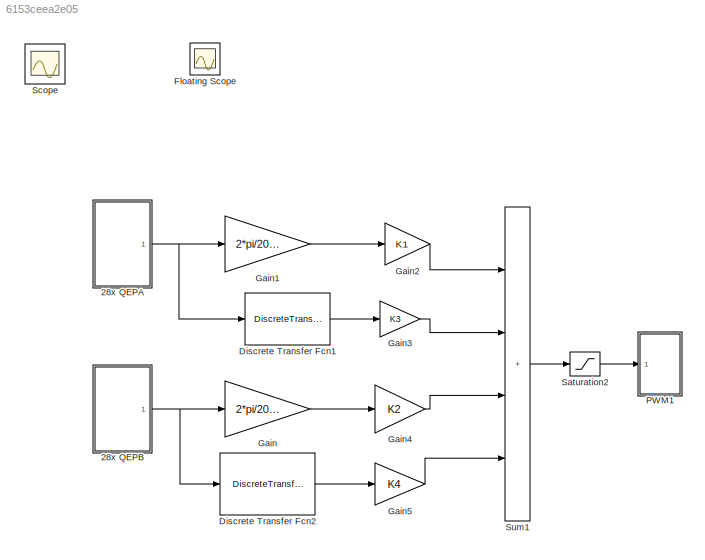
MODEL slx_6153ceea2e05
KIND model
CONFIG AbsTol = auto
CONFIG EnableMultiTasking = on
CONFIG FixedStep = 0.001
CONFIG MaxStep = auto
CONFIG MinStep = auto
CONFIG PreLoadFcn = RIP_LQR
CONFIG RelTol = 1e-3
CONFIG SampleTimeConstraint = Unconstrained
CONFIG Solver = FixedStepDiscrete
CONFIG SolverName = FixedStepDiscrete
CONFIG StartTime = 0
CONFIG StopTime = inf
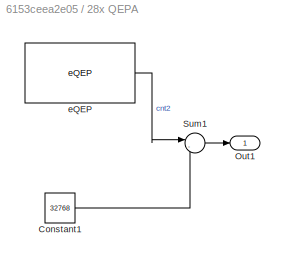
BLOCK [SubSystem] 28x QEPA
  Ports = [0, 1]
  RequestExecContextInheritance = off
BLOCK [Constant] 28x QEPA/Constant1
  Value = 32768
BLOCK [Outport] 28x QEPA/Out1
BLOCK [Sum] 28x QEPA/Sum1
  Inputs = |-+
  Ports = [2, 1]
BLOCK [Reference] 28x QEPA/eQEP  REF=c280xlib/eQEP
  Ports = [0, 1]
  SourceBlock = c280xlib/eQEP
  SourceProductBaseCode = TIC2000
  SourceType = C28x eQEP
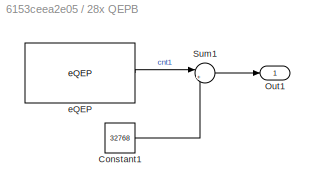
BLOCK [SubSystem] 28x QEPB
  Ports = [0, 1]
  RequestExecContextInheritance = off
BLOCK [Constant] 28x QEPB/Constant1
  Value = 32768
BLOCK [Outport] 28x QEPB/Out1
BLOCK [Sum] 28x QEPB/Sum1
  Inputs = |+-
  NameLocation = top
  Ports = [2, 1]
BLOCK [Reference] 28x QEPB/eQEP  REF=c280xlib/eQEP
  Ports = [0, 1]
  SourceBlock = c280xlib/eQEP
  SourceProductBaseCode = TIC2000
  SourceType = C28x eQEP
BLOCK [DiscreteTransferFcn] Discrete Transfer Fcn1
  Denominator = [1 -0.7788]
  InputPortMap = u0
  Numerator = [3.14 -3.14]
  Ports = [1, 1]
  SampleTime = 0.001
BLOCK [DiscreteTransferFcn] Discrete Transfer Fcn2
  Denominator = [1 -0.7788]
  InputPortMap = u0
  Numerator = [3.14 -3.14]
  Ports = [1, 1]
  SampleTime = 0.001
BLOCK [Scope] Floating Scope
  Floating = off
  IOType = viewer
  NumInputPorts = 1
  Ports = []
  ScopeSpecificationString = C++SS(StrPVP('Location','[376, 294, 700, 533]'),StrPVP('Open','off'),MxPVP('AxesTitles',54,'struct(''axes1'',''%<SignalLabel>'')'),StrPVP('ShowLegends','off'),StrPVP('DataFormat','StructureWithTime'),StrPVP('LimitDataPoints','on'),StrPVP('Decimation','1'),StrPVP('BlockParamSampleInput','off'))
BLOCK [Gain] Gain
  Gain = 2*pi/2000
BLOCK [Gain] Gain1
  Gain = 2*pi/2000
BLOCK [Gain] Gain2
  Gain = K1
BLOCK [Gain] Gain3
  Gain = K3
BLOCK [Gain] Gain4
  Gain = K2
BLOCK [Gain] Gain5
  Gain = K4
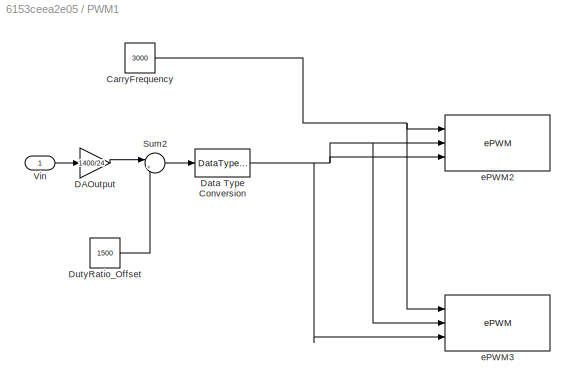
BLOCK [SubSystem] PWM1
  Ports = [1]
  RequestExecContextInheritance = off
BLOCK [Constant] PWM1/CarryFrequency
  OutDataTypeStr = uint16
  Value = 3000
BLOCK [Gain] PWM1/DAOutput
  Gain = 1400/24
  OutDataTypeStr = Inherit: Same as input
  ParamDataTypeStr = Inherit: Same as input
  SaturateOnIntegerOverflow = on
BLOCK [DataTypeConversion] PWM1/Data Type Conversion
BLOCK [Constant] PWM1/DutyRatio_Offset
  Value = 1500
BLOCK [Sum] PWM1/Sum2
  Inputs = |++
  Ports = [2, 1]
  SaturateOnIntegerOverflow = on
BLOCK [Inport] PWM1/Vin
BLOCK [Reference] PWM1/ePWM2  REF=c280xlib/ePWM
  Ports = [3]
  SourceBlock = c280xlib/ePWM
  SourceProductBaseCode = TIC2000
  SourceType = C280x/C2833x ePWM
BLOCK [Reference] PWM1/ePWM3  REF=c280xlib/ePWM
  Ports = [3]
  SourceBlock = c280xlib/ePWM
  SourceProductBaseCode = TIC2000
  SourceType = C280x/C2833x ePWM
BLOCK [Saturate] Saturation2
  LowerLimit = -12
  UpperLimit = 12
BLOCK [Scope] Scope
  Floating = off
  IOType = viewer
  NumInputPorts = 1
  Ports = []
  ScopeSpecificationString = C++SS(StrPVP('Location','[188, 365, 512, 604]'),StrPVP('Open','off'),MxPVP('AxesTitles',54,'struct(''axes1'',''%<SignalLabel>'')'),StrPVP('ShowDataMarkers','off'),StrPVP('ShowLegends','off'),StrPVP('MaxDataPoints','7500'),StrPVP('LimitDataPoints','on'),StrPVP('DataFormat','Array'),StrPVP('Decimation','1'),StrPVP('BlockParamSampleInput','off'))
BLOCK [Sum] Sum1
  IconShape = rectangular
  Inputs = ++++
  Ports = [4, 1]
LINE 28x QEPA/Constant1:1 -> 28x QEPA/Sum1:2
LINE 28x QEPA/Sum1:1 -> 28x QEPA/Out1:1
LINE 28x QEPA/eQEP:1 -> 28x QEPA/Sum1:1
NET 28x QEPA:1 -> Discrete Transfer Fcn1:1, Gain1:1
LINE 28x QEPB/Constant1:1 -> 28x QEPB/Sum1:2
LINE 28x QEPB/Sum1:1 -> 28x QEPB/Out1:1
LINE 28x QEPB/eQEP:1 -> 28x QEPB/Sum1:1
NET 28x QEPB:1 -> Discrete Transfer Fcn2:1, Gain:1
LINE Discrete Transfer Fcn1:1 -> Gain3:1
LINE Discrete Transfer Fcn2:1 -> Gain5:1
LINE Gain1:1 -> Gain2:1
LINE Gain2:1 -> Sum1:1
LINE Gain3:1 -> Sum1:2
LINE Gain4:1 -> Sum1:3
LINE Gain5:1 -> Sum1:4
LINE Gain:1 -> Gain4:1
NET PWM1/CarryFrequency:1 -> PWM1/ePWM2:1, PWM1/ePWM3:1
LINE PWM1/DAOutput:1 -> PWM1/Sum2:1
NET PWM1/Data Type Conversion:1 -> PWM1/ePWM2:2, PWM1/ePWM2:3, PWM1/ePWM3:2, PWM1/ePWM3:3
LINE PWM1/DutyRatio_Offset:1 -> PWM1/Sum2:2
LINE PWM1/Sum2:1 -> PWM1/Data Type Conversion:1
LINE PWM1/Vin:1 -> PWM1/DAOutput:1
LINE Saturation2:1 -> PWM1:1
LINE Sum1:1 -> Saturation2:1
note: NET lines group one-source signal fan-out (src -> all destinations, sorted); 1:1 wires keep LINE
